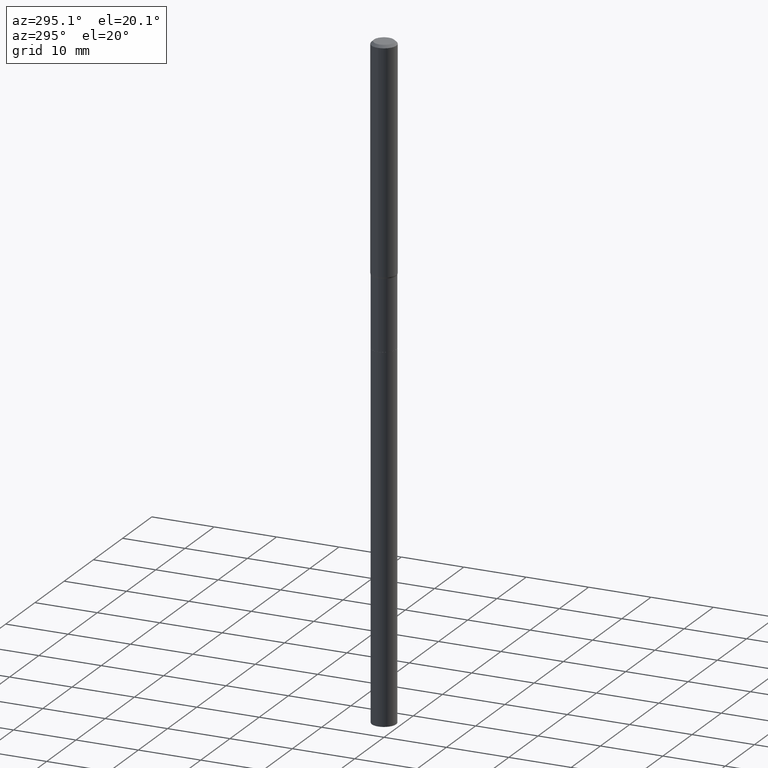
[diagram: clean part render]
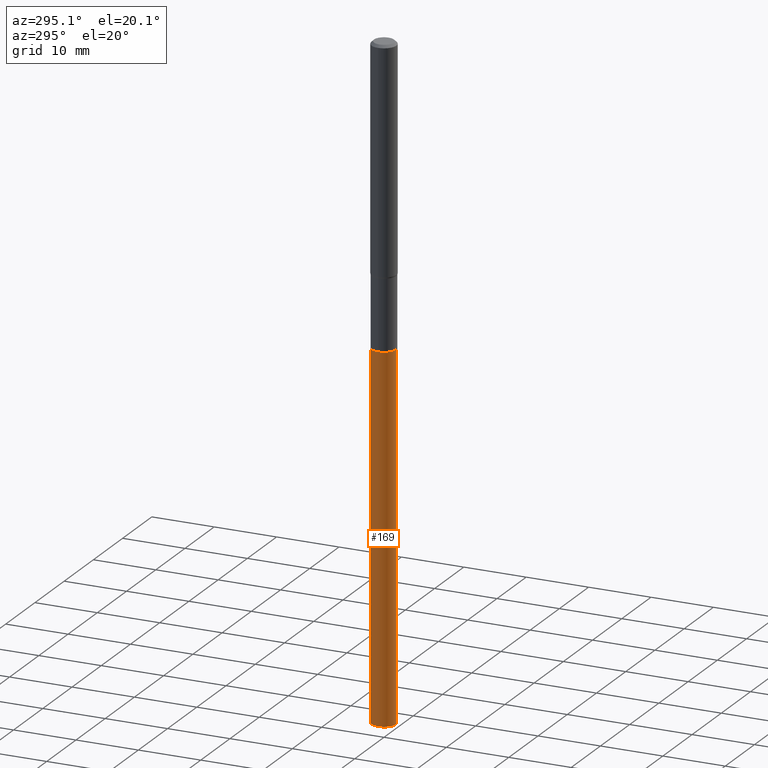
[diagram: same view with one face highlighted and labeled with its STEP entity id]
A machine part, auxiliary view. The second image highlights one B-rep face of the part: STEP entity #169.
In plain terms, the highlighted cylindrical surface (edge-blend (fillet) strip) has radius 1.9495 mm, axis along (-0, 0, 1).
Its self-contained STEP definition (entity closure, byte-faithful):
#19 = ORIENTED_EDGE ( 'NONE', *, *, #246, .F. ) ;
#35 = DIRECTION ( 'NONE',  ( -6.982962677686265133E-15, -1.000000000000000000, 3.559411066663534686E-15 ) ) ;
#36 = VECTOR ( 'NONE', #117, 39.37007874015748143 ) ;
#41 = CARTESIAN_POINT ( 'NONE',  ( 5.453415496959783512E-16, 0.07674999999998556588, -4.145265284520068150 ) ) ;
#42 = EDGE_CURVE ( 'NONE', #387, #194, #390, .T. ) ;
#44 = CIRCLE ( 'NONE', #66, 0.07675000000000001266 ) ;
#66 = AXIS2_PLACEMENT_3D ( 'NONE', #301, #375, #35 ) ;
#81 = DIRECTION ( 'NONE',  ( -2.445435281437177759E-29, 3.491529348190333241E-15, 1.000000000000000000 ) ) ;
#84 = LINE ( 'NONE', #465, #199 ) ;
#107 = CARTESIAN_POINT ( 'NONE',  ( 4.563489339222082280E-29, -6.515453326415192788E-15, -1.866099999999999426 ) ) ;
#117 = DIRECTION ( 'NONE',  ( -2.445435281437177759E-29, 3.491529348190333241E-15, 1.000000000000000000 ) ) ;
#125 = ORIENTED_EDGE ( 'NONE', *, *, #370, .T. ) ;
#134 = ORIENTED_EDGE ( 'NONE', *, *, #42, .T. ) ;
#141 = CYLINDRICAL_SURFACE ( 'NONE', #362, 0.07675000000000001266 ) ;
#150 = EDGE_LOOP ( 'NONE', ( #342, #134, #125, #19 ) ) ;
#153 = CARTESIAN_POINT ( 'NONE',  ( -5.359423855123753660E-16, -0.07675000000000652134, -1.866099999999999204 ) ) ;
#160 = LINE ( 'NONE', #302, #36 ) ;
#169 = ADVANCED_FACE ( 'NONE', ( #409 ), #141, .T. ) ;
#194 = VERTEX_POINT ( 'NONE', #255 ) ;
#199 = VECTOR ( 'NONE', #81, 39.37007874015748143 ) ;
#210 = AXIS2_PLACEMENT_3D ( 'NONE', #278, #314, #239 ) ;
#229 = DIRECTION ( 'NONE',  ( -6.982962677686265133E-15, -1.000000000000000000, 3.559411066663534686E-15 ) ) ;
#239 = DIRECTION ( 'NONE',  ( -6.982962677686265133E-15, -1.000000000000000000, 0.000000000000000000 ) ) ;
#241 = CARTESIAN_POINT ( 'NONE',  ( 5.453415496959785484E-16, 0.07674999999999349010, -1.866099999999999870 ) ) ;
#246 = EDGE_CURVE ( 'NONE', #457, #313, #44, .T. ) ;
#255 = CARTESIAN_POINT ( 'NONE',  ( -5.359423855123197513E-16, -0.07675000000001448719, -4.145265284520068150 ) ) ;
#278 = CARTESIAN_POINT ( 'NONE',  ( 1.013704053821426034E-28, -1.447322580669358287E-14, -4.145265284520068150 ) ) ;
#294 = DIRECTION ( 'NONE',  ( -2.445435281437177479E-29, 3.491529348190333241E-15, 1.000000000000000000 ) ) ;
#301 = CARTESIAN_POINT ( 'NONE',  ( 4.563489339222082280E-29, -6.515453326415192788E-15, -1.866099999999999426 ) ) ;
#302 = CARTESIAN_POINT ( 'NONE',  ( 5.453415496959225393E-16, 0.07674999999999349010, -1.866099999999999870 ) ) ;
#313 = VERTEX_POINT ( 'NONE', #153 ) ;
#314 = DIRECTION ( 'NONE',  ( -2.445435281437177479E-29, 3.491529348190333241E-15, 1.000000000000000000 ) ) ;
#326 = EDGE_CURVE ( 'NONE', #387, #457, #160, .T. ) ;
#342 = ORIENTED_EDGE ( 'NONE', *, *, #326, .F. ) ;
#362 = AXIS2_PLACEMENT_3D ( 'NONE', #107, #294, #229 ) ;
#370 = EDGE_CURVE ( 'NONE', #194, #313, #84, .T. ) ;
#375 = DIRECTION ( 'NONE',  ( -2.445435281437177479E-29, 3.491529348190333241E-15, 1.000000000000000000 ) ) ;
#387 = VERTEX_POINT ( 'NONE', #41 ) ;
#390 = CIRCLE ( 'NONE', #210, 0.07675000000000001266 ) ;
#409 = FACE_OUTER_BOUND ( 'NONE', #150, .T. ) ;
#457 = VERTEX_POINT ( 'NONE', #241 ) ;
#465 = CARTESIAN_POINT ( 'NONE',  ( -5.359423855123753660E-16, -0.07675000000000652134, -1.866099999999999204 ) ) ;